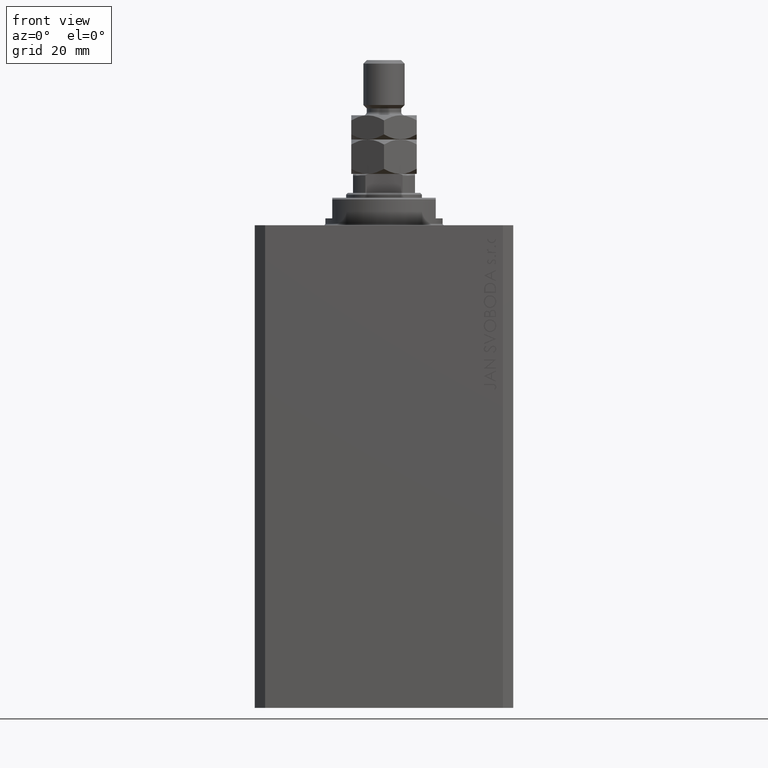
[diagram: clean part render]
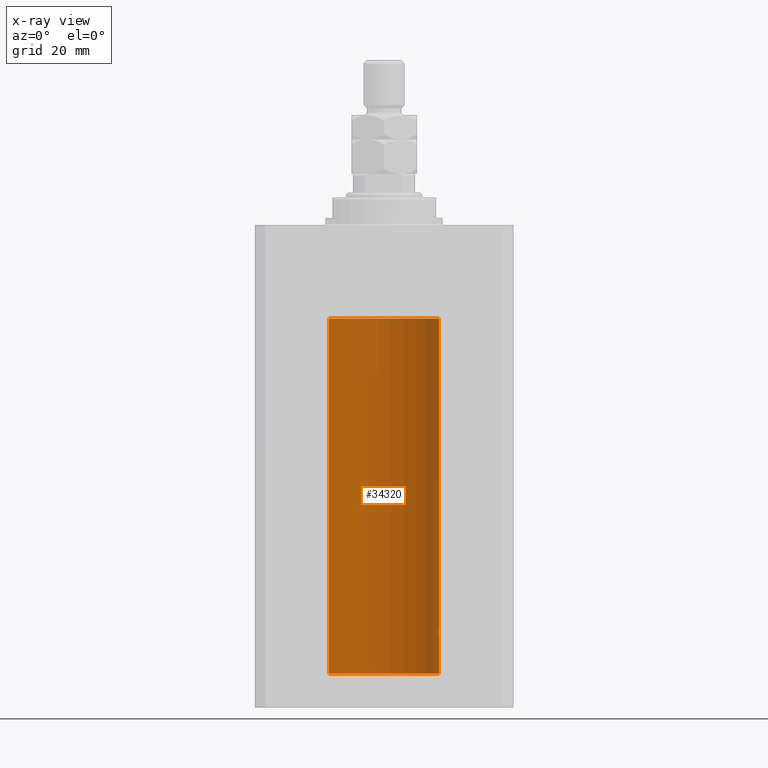
[diagram: x-ray — body ghosted, one internal face saturated and labeled with its STEP entity id]
A machine part, front view, then the same camera in x-ray: the body is ghosted and one INTERNAL B-rep face — a face not visible from any outside direction — is saturated and labeled: STEP entity #34320.
In plain terms, the highlighted cylindrical surface (partial cylindrical patch) has radius 16 mm, axis along (0, 0, 1).
Its self-contained STEP definition (entity closure, byte-faithful):
#757 = CARTESIAN_POINT ( 'NONE',  ( 15.99836014839681830, 0.2623923436743452187, -119.9869991933481828 ) ) ;
#1397 = CARTESIAN_POINT ( 'NONE',  ( 15.88249567060696243, 1.935716055827872539, -117.4802781602162156 ) ) ;
#1588 = B_SPLINE_CURVE_WITH_KNOTS ( 'NONE', 3,
 ( #35518, #27169, #757, #13063, #1715, #31822, #42212, #46881, #41973, #8172, #15802, #30871, #45919, #5181 ),
 .UNSPECIFIED., .F., .F.,
 ( 4, 2, 2, 2, 2, 2, 4 ),
 ( 3.424160547694500162E-18, 0.0003912813346923356916, 0.0007825626693846680221, 0.001173844004077000082, 0.001565125338769331924, 0.002347688008154024883, 0.003130250677538718058 ),
 .UNSPECIFIED. ) ;
#1644 = CARTESIAN_POINT ( 'NONE',  ( 15.87450786638750699, 2.000000000000297096, -118.0000000000000284 ) ) ;
#1715 = CARTESIAN_POINT ( 'NONE',  ( 15.98743782203464825, 0.6453927552190293904, -119.8975403585268396 ) ) ;
#1752 = ORIENTED_EDGE ( 'NONE', *, *, #10966, .F. ) ;
#2227 = VERTEX_POINT ( 'NONE', #12980 ) ;
#2926 = LINE ( 'NONE', #3898, #29848 ) ;
#3898 = CARTESIAN_POINT ( 'NONE',  ( -16.00000000000000000, 1.959434878635765131E-15, -130.0999999999999943 ) ) ;
#4925 = VERTEX_POINT ( 'NONE', #33995 ) ;
#5117 = CARTESIAN_POINT ( 'NONE',  ( 15.87617168140110380, 1.986916736633999037, -117.7368093443493962 ) ) ;
#5181 = CARTESIAN_POINT ( 'NONE',  ( 15.87450786638750699, 2.000000000000297096, -118.0000000000000284 ) ) ;
#6411 = CARTESIAN_POINT ( 'NONE',  ( 15.87450786638750699, 2.000000000000297096, -118.0000000000000284 ) ) ;
#6462 = CARTESIAN_POINT ( 'NONE',  ( 16.00000000000000000, 0.000000000000000000, -130.0999999999999943 ) ) ;
#7086 = DIRECTION ( 'NONE',  ( 1.000000000000000000, 0.000000000000000000, 0.000000000000000000 ) ) ;
#8172 = CARTESIAN_POINT ( 'NONE',  ( 15.92096875784782739, 1.599058044721133331, -119.2292259384397113 ) ) ;
#9587 = ORIENTED_EDGE ( 'NONE', *, *, #43634, .T. ) ;
#9887 = ORIENTED_EDGE ( 'NONE', *, *, #25642, .T. ) ;
#10563 = CARTESIAN_POINT ( 'NONE',  ( 16.00000000000000000, -2.738688404655786685E-23, -116.0000000000000142 ) ) ;
#10966 = EDGE_CURVE ( 'NONE', #48614, #2227, #32456, .T. ) ;
#11832 = ORIENTED_EDGE ( 'NONE', *, *, #36509, .F. ) ;
#12297 = DIRECTION ( 'NONE',  ( 1.000000000000000000, 0.000000000000000000, 0.000000000000000000 ) ) ;
#12721 = CIRCLE ( 'NONE', #23770, 16.00000000000000000 ) ;
#12913 = CARTESIAN_POINT ( 'NONE',  ( -16.00000000000000000, 1.959434878635765131E-15, -27.10000000000000142 ) ) ;
#12980 = CARTESIAN_POINT ( 'NONE',  ( -16.00000000000000000, 1.959434878635765131E-15, -130.0999999999999943 ) ) ;
#13063 = CARTESIAN_POINT ( 'NONE',  ( 15.99211620657850474, 0.5182628822511399225, -119.9360834489417442 ) ) ;
#13239 = CARTESIAN_POINT ( 'NONE',  ( 15.95379436193629985, 1.219925354616377966, -116.4098000984431849 ) ) ;
#13449 = CYLINDRICAL_SURFACE ( 'NONE', #15577, 16.00000000000000000 ) ;
#15242 = EDGE_CURVE ( 'NONE', #40518, #48616, #35947, .T. ) ;
#15577 = AXIS2_PLACEMENT_3D ( 'NONE', #35159, #28505, #42835 ) ;
#15802 = CARTESIAN_POINT ( 'NONE',  ( 15.90454527605181667, 1.748004143318092174, -119.0061673938155309 ) ) ;
#16393 = VECTOR ( 'NONE', #36984, 1000.000000000000000 ) ;
#16444 = CARTESIAN_POINT ( 'NONE',  ( 15.99207203775707065, 0.5197027266689088210, -116.0642796061806337 ) ) ;
#17149 = VECTOR ( 'NONE', #31878, 1000.000000000000000 ) ;
#17160 = EDGE_CURVE ( 'NONE', #22333, #40518, #1588, .T. ) ;
#17180 = CARTESIAN_POINT ( 'NONE',  ( 15.87450786638751055, 2.000000000000297984, -117.8694386949729704 ) ) ;
#17304 = LINE ( 'NONE', #6462, #17149 ) ;
#19251 = CARTESIAN_POINT ( 'NONE',  ( 15.92911104305801828, 1.507378839264603476, -116.6789366429541701 ) ) ;
#20121 = FACE_OUTER_BOUND ( 'NONE', #43402, .T. ) ;
#20430 = DIRECTION ( 'NONE',  ( 0.000000000000000000, 0.000000000000000000, 1.000000000000000000 ) ) ;
#20645 = CARTESIAN_POINT ( 'NONE',  ( 16.00000000000000000, 0.1305637488590863926, -116.0000000000000000 ) ) ;
#21357 = ORIENTED_EDGE ( 'NONE', *, *, #31738, .T. ) ;
#21704 = CARTESIAN_POINT ( 'NONE',  ( 16.00000000000000000, 0.000000000000000000, -130.0999999999999943 ) ) ;
#22130 = DIRECTION ( 'NONE',  ( 0.000000000000000000, 0.000000000000000000, 1.000000000000000000 ) ) ;
#22333 = VERTEX_POINT ( 'NONE', #22730 ) ;
#22416 = DIRECTION ( 'NONE',  ( -0.000000000000000000, -0.000000000000000000, 1.000000000000000000 ) ) ;
#22730 = CARTESIAN_POINT ( 'NONE',  ( 16.00000000000000000, 3.524002214059393877E-15, -120.0000000000000284 ) ) ;
#23195 = CARTESIAN_POINT ( 'NONE',  ( 15.97588373855009536, 0.8864683965309503311, -116.2024065562767561 ) ) ;
#23770 = AXIS2_PLACEMENT_3D ( 'NONE', #24640, #20430, #12297 ) ;
#24640 = CARTESIAN_POINT ( 'NONE',  ( 0.000000000000000000, 0.000000000000000000, -27.10000000000000142 ) ) ;
#25235 = ORIENTED_EDGE ( 'NONE', *, *, #15242, .T. ) ;
#25642 = EDGE_CURVE ( 'NONE', #48614, #22333, #17304, .T. ) ;
#26659 = CARTESIAN_POINT ( 'NONE',  ( 15.88712192135845491, 1.897869642555071179, -117.3555794672821264 ) ) ;
#27169 = CARTESIAN_POINT ( 'NONE',  ( 15.99999999999999645, 0.1323149458028788361, -120.0000000000000426 ) ) ;
#28290 = CARTESIAN_POINT ( 'NONE',  ( 15.98747899434752817, 0.6443623600228916004, -116.1021155051082729 ) ) ;
#28505 = DIRECTION ( 'NONE',  ( -0.000000000000000000, -0.000000000000000000, 1.000000000000000000 ) ) ;
#29848 = VECTOR ( 'NONE', #22416, 1000.000000000000000 ) ;
#29887 = VERTEX_POINT ( 'NONE', #12913 ) ;
#30871 = CARTESIAN_POINT ( 'NONE',  ( 15.88135773388169092, 1.947448446433282854, -118.5247245543324794 ) ) ;
#31738 = EDGE_CURVE ( 'NONE', #48616, #4925, #48819, .T. ) ;
#31753 = CARTESIAN_POINT ( 'NONE',  ( 16.00000000000000000, -2.738688404655786685E-23, -116.0000000000000142 ) ) ;
#31822 = CARTESIAN_POINT ( 'NONE',  ( 15.97582125337101999, 0.8876008124445644576, -119.7970409061775143 ) ) ;
#31878 = DIRECTION ( 'NONE',  ( -0.000000000000000000, -0.000000000000000000, 1.000000000000000000 ) ) ;
#31991 = CARTESIAN_POINT ( 'NONE',  ( 15.89878974374255449, 1.797508500259969777, -117.1133488878856781 ) ) ;
#32027 = ORIENTED_EDGE ( 'NONE', *, *, #17160, .T. ) ;
#32239 = CARTESIAN_POINT ( 'NONE',  ( 15.92095407913750726, 1.590131347295332009, -116.7799846904292167 ) ) ;
#32456 = CIRCLE ( 'NONE', #45847, 16.00000000000000000 ) ;
#32755 = CARTESIAN_POINT ( 'NONE',  ( 0.000000000000000000, 0.000000000000000000, -130.0999999999999943 ) ) ;
#33995 = CARTESIAN_POINT ( 'NONE',  ( 16.00000000000000000, 0.000000000000000000, -27.10000000000000142 ) ) ;
#34320 = ADVANCED_FACE ( 'NONE', ( #20121 ), #13449, .F. ) ;
#35159 = CARTESIAN_POINT ( 'NONE',  ( 0.000000000000000000, 0.000000000000000000, -130.0999999999999943 ) ) ;
#35518 = CARTESIAN_POINT ( 'NONE',  ( 16.00000000000000000, 3.524002214059393877E-15, -120.0000000000000284 ) ) ;
#35947 = B_SPLINE_CURVE_WITH_KNOTS ( 'NONE', 3,
 ( #1644, #17180, #5117, #1397, #26659, #31991, #41706, #32239, #19251, #47048, #13239, #41956, #23195, #28290, #16444, #38237, #20645, #31753 ),
 .UNSPECIFIED., .F., .F.,
 ( 4, 2, 2, 2, 2, 2, 2, 2, 4 ),
 ( 0.003130250677538718058, 0.003521348247420690372, 0.003912445817302662686, 0.004303543387184635000, 0.004694640957066607313, 0.005085738526948579627, 0.005476836096830552808, 0.005867933666712525122, 0.006259031236594497435 ),
 .UNSPECIFIED. ) ;
#36509 = EDGE_CURVE ( 'NONE', #2227, #29887, #2926, .T. ) ;
#36984 = DIRECTION ( 'NONE',  ( -0.000000000000000000, -0.000000000000000000, 1.000000000000000000 ) ) ;
#38237 = CARTESIAN_POINT ( 'NONE',  ( 15.99834953062734222, 0.2631943783489354982, -116.0130845296388316 ) ) ;
#40518 = VERTEX_POINT ( 'NONE', #6411 ) ;
#41706 = CARTESIAN_POINT ( 'NONE',  ( 15.90582997788426312, 1.734897462761020082, -116.9964633285505187 ) ) ;
#41956 = CARTESIAN_POINT ( 'NONE',  ( 15.96887171920781689, 1.003448269354837441, -116.2650518254207412 ) ) ;
#41973 = CARTESIAN_POINT ( 'NONE',  ( 15.94550883254178331, 1.322613426523511881, -119.5058849502901666 ) ) ;
#42212 = CARTESIAN_POINT ( 'NONE',  ( 15.96893716441426214, 1.002454028984434808, -119.7355604244121707 ) ) ;
#42835 = DIRECTION ( 'NONE',  ( 1.000000000000000000, 0.000000000000000000, 0.000000000000000000 ) ) ;
#43402 = EDGE_LOOP ( 'NONE', ( #11832, #1752, #9887, #32027, #25235, #21357, #9587 ) ) ;
#43634 = EDGE_CURVE ( 'NONE', #4925, #29887, #12721, .T. ) ;
#45847 = AXIS2_PLACEMENT_3D ( 'NONE', #32755, #22130, #7086 ) ;
#45919 = CARTESIAN_POINT ( 'NONE',  ( 15.87450786638751410, 2.000000000000297096, -118.2612453035981872 ) ) ;
#46881 = CARTESIAN_POINT ( 'NONE',  ( 15.95380611548778660, 1.219810915946573759, -119.5903287070132706 ) ) ;
#47048 = CARTESIAN_POINT ( 'NONE',  ( 15.94566414814287469, 1.320819617421907788, -116.4924075827249226 ) ) ;
#48336 = CARTESIAN_POINT ( 'NONE',  ( 16.00000000000000000, 0.000000000000000000, -130.0999999999999943 ) ) ;
#48614 = VERTEX_POINT ( 'NONE', #48336 ) ;
#48616 = VERTEX_POINT ( 'NONE', #10563 ) ;
#48819 = LINE ( 'NONE', #21704, #16393 ) ;